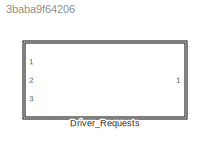
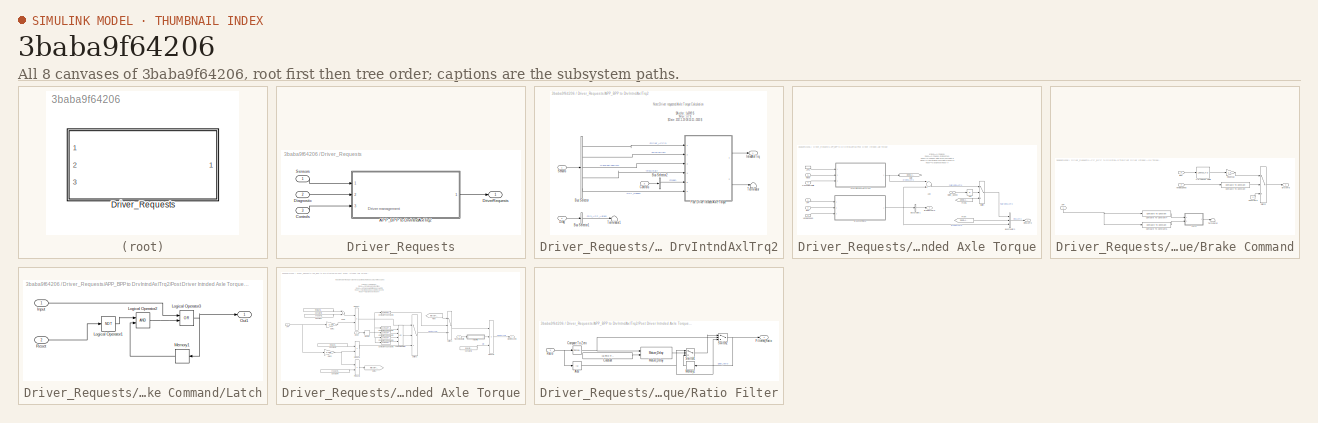
[diagram: thumbnail index - all 8 canvases of the model, root first then tree order]
MODEL slx_3baba9f64206
KIND library
CONFIG AbsTol = auto
CONFIG EnableMultiTasking = off
CONFIG FixedStep = auto
CONFIG MaxStep = auto
CONFIG MinStep = auto
CONFIG RelTol = 1e-3
CONFIG SampleTimeConstraint = Unconstrained
CONFIG Solver = VariableStepAuto
CONFIG SolverName = VariableStepAuto
CONFIG StartTime = 0.0
CONFIG StopTime = 10.0
BLOCK [SubSystem] Driver_Requests
  Ports = [3, 1]
  RequestExecContextInheritance = off
  Variant = off
BLOCK [SubSystem] Driver_Requests/APP_BPP to DrvIntndAxlTrq2
  Ports = [3, 1]
  RequestExecContextInheritance = off
  Variant = off
BLOCK [BusSelector] Driver_Requests/APP_BPP to DrvIntndAxlTrq2/Bus Selector
  OutputAsBus = off
  OutputSignals = from_Analog.Driver_APP1,from_CAN.fromVEH_CAN.from_BCM.BrkPdlPos,from_CAN.fromEBCAN.from_ECM.VehSpdAvgDrvn,from_CAN.fromVEH_CAN.from_TCM.TrnGrRat,from_CAN.fromHV_CAN.from_MCU.INV_VCU_01.INV_Speed
  Ports = [1, 5]
BLOCK [BusSelector] Driver_Requests/APP_BPP to DrvIntndAxlTrq2/Bus Selector1
  OutputAsBus = off
  OutputSignals = CompSig.RawSig.Driver_SigDiag.Drv_APP_Agree
  Ports = [1, 1]
BLOCK [BusSelector] Driver_Requests/APP_BPP to DrvIntndAxlTrq2/Bus Selector2
  OutputAsBus = off
  OutputSignals = mode
  Ports = [1, 1]
BLOCK [Inport] Driver_Requests/APP_BPP to DrvIntndAxlTrq2/Controls
  IconDisplay = Port number
  Port = 3
BLOCK [Inport] Driver_Requests/APP_BPP to DrvIntndAxlTrq2/Diag
  IconDisplay = Port number
  Port = 2
BLOCK [Outport] Driver_Requests/APP_BPP to DrvIntndAxlTrq2/IntndAxlTrq
  IconDisplay = Port number
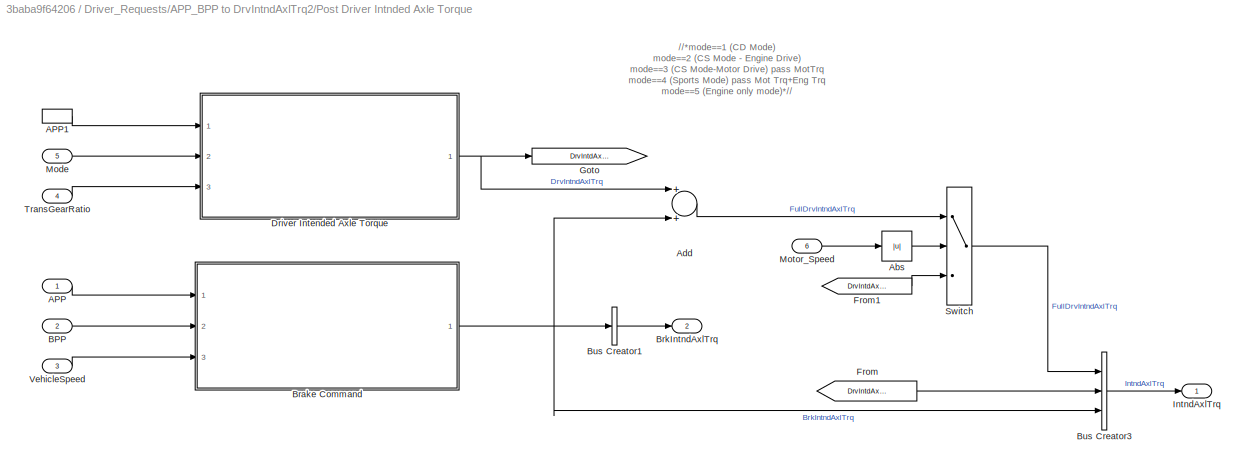
BLOCK [SubSystem] Driver_Requests/APP_BPP to DrvIntndAxlTrq2/Post Driver Intnded Axle Torque
  Ports = [6, 2]
  RequestExecContextInheritance = off
  Variant = off
BLOCK [Inport] Driver_Requests/APP_BPP to DrvIntndAxlTrq2/Post Driver Intnded Axle Torque/APP
  IconDisplay = Port number
BLOCK [InportShadow] Driver_Requests/APP_BPP to DrvIntndAxlTrq2/Post Driver Intnded Axle Torque/APP1
  IconDisplay = Port number
BLOCK [Abs] Driver_Requests/APP_BPP to DrvIntndAxlTrq2/Post Driver Intnded Axle Torque/Abs
  SaturateOnIntegerOverflow = off
BLOCK [Sum] Driver_Requests/APP_BPP to DrvIntndAxlTrq2/Post Driver Intnded Axle Torque/Add
  InputSameDT = off
  OutDataTypeStr = Inherit: Inherit via internal rule
  Ports = [2, 1]
  SaturateOnIntegerOverflow = off
BLOCK [Inport] Driver_Requests/APP_BPP to DrvIntndAxlTrq2/Post Driver Intnded Axle Torque/BPP
  IconDisplay = Port number
  Port = 2
BLOCK [SubSystem] Driver_Requests/APP_BPP to DrvIntndAxlTrq2/Post Driver Intnded Axle Torque/Brake Command
  Ports = [3, 1]
  RequestExecContextInheritance = off
  Variant = off
BLOCK [Lookup_n-D] Driver_Requests/APP_BPP to DrvIntndAxlTrq2/Post Driver Intnded Axle Torque/Brake Command/1-D Lookup Table
  BreakpointsForDimension1 = cal.Regen.BrakeAxleTrq.idx1_BrkPdlPos
  InternalRulePriority = Speed
  NumberOfTableDimensions = 1
  Ports = [1, 1]
  RndMeth = Simplest
  Table = cal.Regen.BrakeAxleTrq.map
BLOCK [Inport] Driver_Requests/APP_BPP to DrvIntndAxlTrq2/Post Driver Intnded Axle Torque/Brake Command/APP
  IconDisplay = Port number
BLOCK [Inport] Driver_Requests/APP_BPP to DrvIntndAxlTrq2/Post Driver Intnded Axle Torque/Brake Command/BPP
  IconDisplay = Port number
  Port = 2
BLOCK [Outport] Driver_Requests/APP_BPP to DrvIntndAxlTrq2/Post Driver Intnded Axle Torque/Brake Command/BrkAxlTrq
  IconDisplay = Port number
BLOCK [Reference] Driver_Requests/APP_BPP to DrvIntndAxlTrq2/Post Driver Intnded Axle Torque/Brake Command/Compare To Constant  REF=simulink/Logic and Bit
Operations/Compare
To Constant
  Ports = [1, 1]
  SourceBlock = simulink/Logic and Bit\nOperations/Compare\nTo Constant
  SourceProductBaseCode = SL
  SourceProductName = Simulink
  SourceType = Compare To Constant
BLOCK [Reference] Driver_Requests/APP_BPP to DrvIntndAxlTrq2/Post Driver Intnded Axle Torque/Brake Command/Compare To Constant4  REF=simulink/Logic and Bit
Operations/Compare
To Constant
  Ports = [1, 1]
  SourceBlock = simulink/Logic and Bit\nOperations/Compare\nTo Constant
  SourceProductBaseCode = SL
  SourceProductName = Simulink
  SourceType = Compare To Constant
BLOCK [Reference] Driver_Requests/APP_BPP to DrvIntndAxlTrq2/Post Driver Intnded Axle Torque/Brake Command/Compare To Constant5  REF=simulink/Logic and Bit
Operations/Compare
To Constant
  Ports = [1, 1]
  SourceBlock = simulink/Logic and Bit\nOperations/Compare\nTo Constant
  SourceProductBaseCode = SL
  SourceProductName = Simulink
  SourceType = Compare To Constant
BLOCK [Constant] Driver_Requests/APP_BPP to DrvIntndAxlTrq2/Post Driver Intnded Axle Torque/Brake Command/Constant5
  Value = 0
BLOCK [SubSystem] Driver_Requests/APP_BPP to DrvIntndAxlTrq2/Post Driver Intnded Axle Torque/Brake Command/Latch
  Ports = [2, 1]
  RequestExecContextInheritance = off
  Variant = off
BLOCK [Inport] Driver_Requests/APP_BPP to DrvIntndAxlTrq2/Post Driver Intnded Axle Torque/Brake Command/Latch/Input
  IconDisplay = Port number
BLOCK [Logic] Driver_Requests/APP_BPP to DrvIntndAxlTrq2/Post Driver Intnded Axle Torque/Brake Command/Latch/Logical Operator1
  AllPortsSameDT = off
  Operator = NOT
  OutDataTypeStr = boolean
  Ports = [1, 1]
BLOCK [Logic] Driver_Requests/APP_BPP to DrvIntndAxlTrq2/Post Driver Intnded Axle Torque/Brake Command/Latch/Logical Operator2
  AllPortsSameDT = off
  OutDataTypeStr = boolean
  Ports = [2, 1]
BLOCK [Logic] Driver_Requests/APP_BPP to DrvIntndAxlTrq2/Post Driver Intnded Axle Torque/Brake Command/Latch/Logical Operator3
  AllPortsSameDT = off
  Operator = OR
  OutDataTypeStr = boolean
  Ports = [2, 1]
BLOCK [Memory] Driver_Requests/APP_BPP to DrvIntndAxlTrq2/Post Driver Intnded Axle Torque/Brake Command/Latch/Memory1
BLOCK [Outport] Driver_Requests/APP_BPP to DrvIntndAxlTrq2/Post Driver Intnded Axle Torque/Brake Command/Latch/Out1
  IconDisplay = Port number
BLOCK [Inport] Driver_Requests/APP_BPP to DrvIntndAxlTrq2/Post Driver Intnded Axle Torque/Brake Command/Latch/Reset
  IconDisplay = Port number
  Port = 2
BLOCK [Gain] Driver_Requests/APP_BPP to DrvIntndAxlTrq2/Post Driver Intnded Axle Torque/Brake Command/RegenCal
  Gain = 1.3
  OutDataTypeStr = Inherit: Inherit via internal rule
  ParamDataTypeStr = Inherit: Inherit via internal rule
  SaturateOnIntegerOverflow = off
BLOCK [Switch] Driver_Requests/APP_BPP to DrvIntndAxlTrq2/Post Driver Intnded Axle Torque/Brake Command/Switch
  Criteria = u2 > Threshold
  InputSameDT = off
  SaturateOnIntegerOverflow = off
  Threshold = 1
BLOCK [Terminator] Driver_Requests/APP_BPP to DrvIntndAxlTrq2/Post Driver Intnded Axle Torque/Brake Command/Terminator
BLOCK [Inport] Driver_Requests/APP_BPP to DrvIntndAxlTrq2/Post Driver Intnded Axle Torque/Brake Command/VehicleSpeed
  IconDisplay = Port number
  Port = 3
BLOCK [Outport] Driver_Requests/APP_BPP to DrvIntndAxlTrq2/Post Driver Intnded Axle Torque/BrkIntndAxlTrq
  IconDisplay = Port number
  Port = 2
BLOCK [BusCreator] Driver_Requests/APP_BPP to DrvIntndAxlTrq2/Post Driver Intnded Axle Torque/Bus Creator1
  DisplayOption = bar
  InheritFromInputs = on
  Inputs = 1
  Ports = [1, 1]
BLOCK [BusCreator] Driver_Requests/APP_BPP to DrvIntndAxlTrq2/Post Driver Intnded Axle Torque/Bus Creator3
  DisplayOption = bar
  InheritFromInputs = on
  Inputs = 3
  Ports = [3, 1]
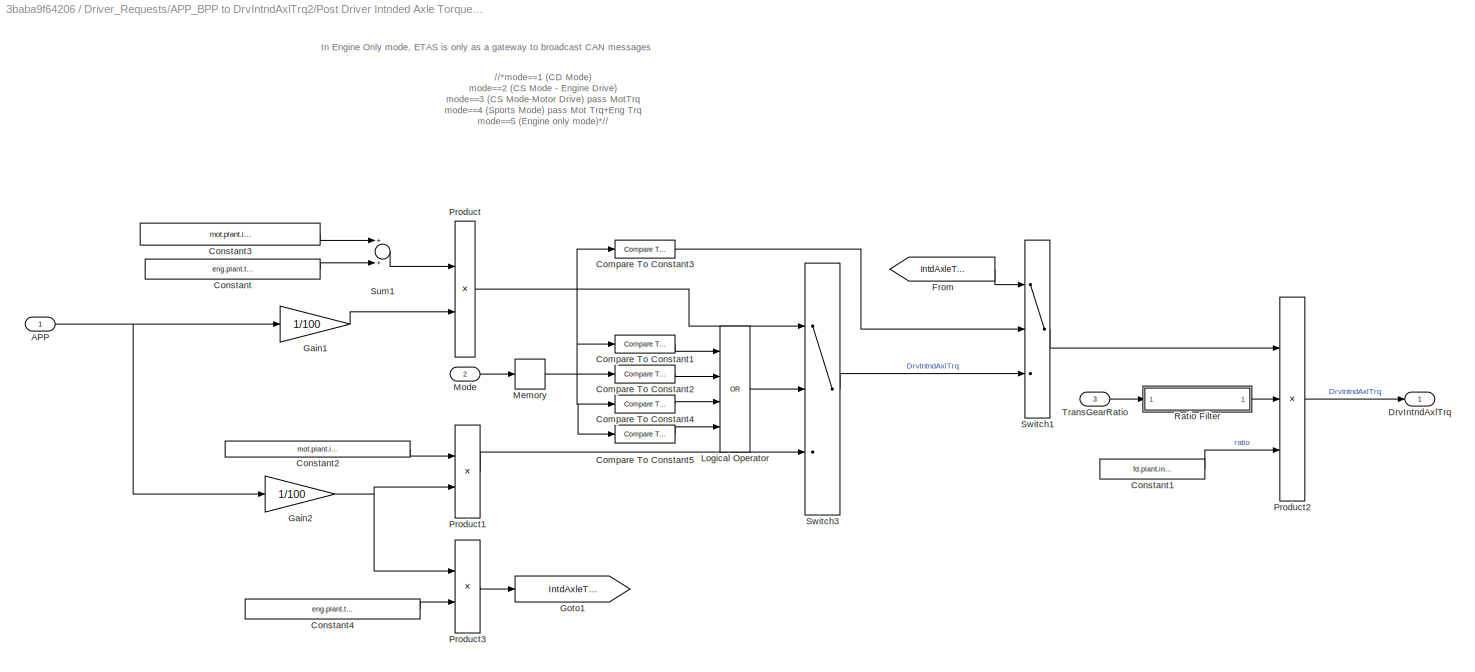
BLOCK [SubSystem] Driver_Requests/APP_BPP to DrvIntndAxlTrq2/Post Driver Intnded Axle Torque/Driver Intended Axle Torque
  Ports = [3, 1]
  RequestExecContextInheritance = off
  Variant = off
BLOCK [Inport] Driver_Requests/APP_BPP to DrvIntndAxlTrq2/Post Driver Intnded Axle Torque/Driver Intended Axle Torque/APP
  IconDisplay = Port number
BLOCK [Reference] Driver_Requests/APP_BPP to DrvIntndAxlTrq2/Post Driver Intnded Axle Torque/Driver Intended Axle Torque/Compare To Constant1  REF=simulink/Logic and Bit
Operations/Compare
To Constant
  Ports = [1, 1]
  SourceBlock = simulink/Logic and Bit\nOperations/Compare\nTo Constant
  SourceProductBaseCode = SL
  SourceProductName = Simulink
  SourceType = Compare To Constant
BLOCK [Reference] Driver_Requests/APP_BPP to DrvIntndAxlTrq2/Post Driver Intnded Axle Torque/Driver Intended Axle Torque/Compare To Constant2  REF=simulink/Logic and Bit
Operations/Compare
To Constant
  Ports = [1, 1]
  SourceBlock = simulink/Logic and Bit\nOperations/Compare\nTo Constant
  SourceProductBaseCode = SL
  SourceProductName = Simulink
  SourceType = Compare To Constant
BLOCK [Reference] Driver_Requests/APP_BPP to DrvIntndAxlTrq2/Post Driver Intnded Axle Torque/Driver Intended Axle Torque/Compare To Constant3  REF=simulink/Logic and Bit
Operations/Compare
To Constant
  Ports = [1, 1]
  SourceBlock = simulink/Logic and Bit\nOperations/Compare\nTo Constant
  SourceProductBaseCode = SL
  SourceProductName = Simulink
  SourceType = Compare To Constant
BLOCK [Reference] Driver_Requests/APP_BPP to DrvIntndAxlTrq2/Post Driver Intnded Axle Torque/Driver Intended Axle Torque/Compare To Constant4  REF=simulink/Logic and Bit
Operations/Compare
To Constant
  Ports = [1, 1]
  SourceBlock = simulink/Logic and Bit\nOperations/Compare\nTo Constant
  SourceProductBaseCode = SL
  SourceProductName = Simulink
  SourceType = Compare To Constant
BLOCK [Reference] Driver_Requests/APP_BPP to DrvIntndAxlTrq2/Post Driver Intnded Axle Torque/Driver Intended Axle Torque/Compare To Constant5  REF=simulink/Logic and Bit
Operations/Compare
To Constant
  Ports = [1, 1]
  SourceBlock = simulink/Logic and Bit\nOperations/Compare\nTo Constant
  SourceProductBaseCode = SL
  SourceProductName = Simulink
  SourceType = Compare To Constant
BLOCK [Constant] Driver_Requests/APP_BPP to DrvIntndAxlTrq2/Post Driver Intnded Axle Torque/Driver Intended Axle Torque/Constant
  Value = eng.plant.trq_max_hot_point
  VectorParams1D = off
BLOCK [Constant] Driver_Requests/APP_BPP to DrvIntndAxlTrq2/Post Driver Intnded Axle Torque/Driver Intended Axle Torque/Constant1
  Value = fd.plant.init.ratio
BLOCK [Constant] Driver_Requests/APP_BPP to DrvIntndAxlTrq2/Post Driver Intnded Axle Torque/Driver Intended Axle Torque/Constant2
  Value = mot.plant.init.motor.trq_max.points.trq
  VectorParams1D = off
BLOCK [Constant] Driver_Requests/APP_BPP to DrvIntndAxlTrq2/Post Driver Intnded Axle Torque/Driver Intended Axle Torque/Constant3
  Value = mot.plant.init.motor.trq_max.points.trq
  VectorParams1D = off
BLOCK [Constant] Driver_Requests/APP_BPP to DrvIntndAxlTrq2/Post Driver Intnded Axle Torque/Driver Intended Axle Torque/Constant4
  Value = eng.plant.trq_max_hot_point
  VectorParams1D = off
BLOCK [Outport] Driver_Requests/APP_BPP to DrvIntndAxlTrq2/Post Driver Intnded Axle Torque/Driver Intended Axle Torque/DrvIntndAxlTrq
  IconDisplay = Port number
BLOCK [From] Driver_Requests/APP_BPP to DrvIntndAxlTrq2/Post Driver Intnded Axle Torque/Driver Intended Axle Torque/From
  GotoTag = IntdAxleTrq_eng
BLOCK [Gain] Driver_Requests/APP_BPP to DrvIntndAxlTrq2/Post Driver Intnded Axle Torque/Driver Intended Axle Torque/Gain1
  Gain = 1/100
  OutDataTypeStr = Inherit: Inherit via internal rule
  ParamDataTypeStr = Inherit: Inherit via internal rule
  SaturateOnIntegerOverflow = off
BLOCK [Gain] Driver_Requests/APP_BPP to DrvIntndAxlTrq2/Post Driver Intnded Axle Torque/Driver Intended Axle Torque/Gain2
  Gain = 1/100
  OutDataTypeStr = Inherit: Inherit via internal rule
  ParamDataTypeStr = Inherit: Inherit via internal rule
  SaturateOnIntegerOverflow = off
BLOCK [Goto] Driver_Requests/APP_BPP to DrvIntndAxlTrq2/Post Driver Intnded Axle Torque/Driver Intended Axle Torque/Goto1
  GotoTag = IntdAxleTrq_eng
BLOCK [Logic] Driver_Requests/APP_BPP to DrvIntndAxlTrq2/Post Driver Intnded Axle Torque/Driver Intended Axle Torque/Logical Operator
  AllPortsSameDT = off
  Inputs = 4
  Operator = OR
  OutDataTypeStr = boolean
  Ports = [4, 1]
BLOCK [Memory] Driver_Requests/APP_BPP to DrvIntndAxlTrq2/Post Driver Intnded Axle Torque/Driver Intended Axle Torque/Memory
BLOCK [Inport] Driver_Requests/APP_BPP to DrvIntndAxlTrq2/Post Driver Intnded Axle Torque/Driver Intended Axle Torque/Mode
  IconDisplay = Port number
  Port = 2
BLOCK [Product] Driver_Requests/APP_BPP to DrvIntndAxlTrq2/Post Driver Intnded Axle Torque/Driver Intended Axle Torque/Product
  InputSameDT = off
  OutDataTypeStr = Inherit: Inherit via internal rule
  Ports = [2, 1]
  SaturateOnIntegerOverflow = off
BLOCK [Product] Driver_Requests/APP_BPP to DrvIntndAxlTrq2/Post Driver Intnded Axle Torque/Driver Intended Axle Torque/Product1
  InputSameDT = off
  OutDataTypeStr = Inherit: Inherit via internal rule
  Ports = [2, 1]
  SaturateOnIntegerOverflow = off
BLOCK [Product] Driver_Requests/APP_BPP to DrvIntndAxlTrq2/Post Driver Intnded Axle Torque/Driver Intended Axle Torque/Product2
  InputSameDT = off
  Inputs = 3
  OutDataTypeStr = Inherit: Inherit via internal rule
  Ports = [3, 1]
  SaturateOnIntegerOverflow = off
BLOCK [Product] Driver_Requests/APP_BPP to DrvIntndAxlTrq2/Post Driver Intnded Axle Torque/Driver Intended Axle Torque/Product3
  InputSameDT = off
  OutDataTypeStr = Inherit: Inherit via internal rule
  Ports = [2, 1]
  SaturateOnIntegerOverflow = off
BLOCK [SubSystem] Driver_Requests/APP_BPP to DrvIntndAxlTrq2/Post Driver Intnded Axle Torque/Driver Intended Axle Torque/Ratio Filter
  Ports = [1, 1]
  RequestExecContextInheritance = off
  Variant = off
BLOCK [Abs] Driver_Requests/APP_BPP to DrvIntndAxlTrq2/Post Driver Intnded Axle Torque/Driver Intended Axle Torque/Ratio Filter/Abs
  SaturateOnIntegerOverflow = off
BLOCK [Reference] Driver_Requests/APP_BPP to DrvIntndAxlTrq2/Post Driver Intnded Axle Torque/Driver Intended Axle Torque/Ratio Filter/Compare To Zero  REF=simulink/Logic and Bit
Operations/Compare
To Zero
  Ports = [1, 1]
  SourceBlock = simulink/Logic and Bit\nOperations/Compare\nTo Zero
  SourceProductBaseCode = SL
  SourceProductName = Simulink
  SourceType = Compare To Zero
BLOCK [Constant] Driver_Requests/APP_BPP to DrvIntndAxlTrq2/Post Driver Intnded Axle Torque/Driver Intended Axle Torque/Ratio Filter/Constant
  Value = cal.Time.TrnsOvrllEstTrqRatioSwitch
BLOCK [Outport] Driver_Requests/APP_BPP to DrvIntndAxlTrq2/Post Driver Intnded Axle Torque/Driver Intended Axle Torque/Ratio Filter/Filtered_Ratio
  IconDisplay = Port number
BLOCK [Reference] Driver_Requests/APP_BPP to DrvIntndAxlTrq2/Post Driver Intnded Axle Torque/Driver Intended Axle Torque/Ratio Filter/Mature_Delay  REF=EC2_libraries/Mature_Delay
  Ports = [2, 1]
  SourceBlock = EC2_libraries/Mature_Delay
  SourceType = SubSystem
BLOCK [Memory] Driver_Requests/APP_BPP to DrvIntndAxlTrq2/Post Driver Intnded Axle Torque/Driver Intended Axle Torque/Ratio Filter/Memory1
  X0 = 1
BLOCK [Inport] Driver_Requests/APP_BPP to DrvIntndAxlTrq2/Post Driver Intnded Axle Torque/Driver Intended Axle Torque/Ratio Filter/Ratio
  IconDisplay = Port number
BLOCK [Switch] Driver_Requests/APP_BPP to DrvIntndAxlTrq2/Post Driver Intnded Axle Torque/Driver Intended Axle Torque/Ratio Filter/Switch1
  InputSameDT = off
  SaturateOnIntegerOverflow = off
  Threshold = 1
BLOCK [Switch] Driver_Requests/APP_BPP to DrvIntndAxlTrq2/Post Driver Intnded Axle Torque/Driver Intended Axle Torque/Ratio Filter/Switch2
  InputSameDT = off
  SaturateOnIntegerOverflow = off
  Threshold = 1
BLOCK [Sum] Driver_Requests/APP_BPP to DrvIntndAxlTrq2/Post Driver Intnded Axle Torque/Driver Intended Axle Torque/Sum1
  InputSameDT = off
  OutDataTypeStr = Inherit: Inherit via internal rule
  Ports = [2, 1]
  SaturateOnIntegerOverflow = off
BLOCK [Switch] Driver_Requests/APP_BPP to DrvIntndAxlTrq2/Post Driver Intnded Axle Torque/Driver Intended Axle Torque/Switch1
  InputSameDT = off
  SaturateOnIntegerOverflow = off
  Threshold = 1
BLOCK [Switch] Driver_Requests/APP_BPP to DrvIntndAxlTrq2/Post Driver Intnded Axle Torque/Driver Intended Axle Torque/Switch3
  InputSameDT = off
  SaturateOnIntegerOverflow = off
  Threshold = 1
BLOCK [Inport] Driver_Requests/APP_BPP to DrvIntndAxlTrq2/Post Driver Intnded Axle Torque/Driver Intended Axle Torque/TransGearRatio
  IconDisplay = Port number
  Port = 3
BLOCK [From] Driver_Requests/APP_BPP to DrvIntndAxlTrq2/Post Driver Intnded Axle Torque/From
  GotoTag = DrvIntdAxleTrq
  TagVisibility = global
BLOCK [From] Driver_Requests/APP_BPP to DrvIntndAxlTrq2/Post Driver Intnded Axle Torque/From1
  GotoTag = DrvIntdAxleTrq
BLOCK [Goto] Driver_Requests/APP_BPP to DrvIntndAxlTrq2/Post Driver Intnded Axle Torque/Goto
  GotoTag = DrvIntdAxleTrq
  TagVisibility = global
BLOCK [Outport] Driver_Requests/APP_BPP to DrvIntndAxlTrq2/Post Driver Intnded Axle Torque/IntndAxlTrq
  IconDisplay = Port number
BLOCK [Inport] Driver_Requests/APP_BPP to DrvIntndAxlTrq2/Post Driver Intnded Axle Torque/Mode
  IconDisplay = Port number
  Port = 5
BLOCK [Inport] Driver_Requests/APP_BPP to DrvIntndAxlTrq2/Post Driver Intnded Axle Torque/Motor_Speed
  IconDisplay = Port number
  Port = 6
BLOCK [Switch] Driver_Requests/APP_BPP to DrvIntndAxlTrq2/Post Driver Intnded Axle Torque/Switch
  InputSameDT = off
  SaturateOnIntegerOverflow = off
  Threshold = cal.Regen.MinMotSpd
BLOCK [Inport] Driver_Requests/APP_BPP to DrvIntndAxlTrq2/Post Driver Intnded Axle Torque/TransGearRatio
  IconDisplay = Port number
  Port = 4
BLOCK [Inport] Driver_Requests/APP_BPP to DrvIntndAxlTrq2/Post Driver Intnded Axle Torque/VehicleSpeed
  IconDisplay = Port number
  Port = 3
BLOCK [Inport] Driver_Requests/APP_BPP to DrvIntndAxlTrq2/Sensors
  IconDisplay = Port number
BLOCK [Terminator] Driver_Requests/APP_BPP to DrvIntndAxlTrq2/Terminator
BLOCK [Terminator] Driver_Requests/APP_BPP to DrvIntndAxlTrq2/Terminator1
BLOCK [Inport] Driver_Requests/Controls 
  IconDisplay = Port number
  Port = 3
BLOCK [Inport] Driver_Requests/Diagnostic 
  IconDisplay = Port number
  Port = 2
BLOCK [Outport] Driver_Requests/DriverRequests
  IconDisplay = Port number
BLOCK [Inport] Driver_Requests/Sensors
  IconDisplay = Port number
ANNOTATION Driver_Requests: Driver management
ANNOTATION Driver_Requests/APP_BPP to DrvIntndAxlTrq2: $Author: fy6949 $ $Rev: 577 $ $Date: 2017-1-19 08:53:15 -0500 $
ANNOTATION Driver_Requests/APP_BPP to DrvIntndAxlTrq2: Note:Driver requested Axle Torque Calculation
ANNOTATION Driver_Requests/APP_BPP to DrvIntndAxlTrq2/Post Driver Intnded Axle Torque: //*mode==1 (CD Mode) mode==2 (CS Mode - Engine Drive) mode==3 (CS Mode-Motor Drive) pass MotTrq mode==4 (Sports Mode) pass Mot Trq+Eng Trq mode==5 (Engine only mode)*//
ANNOTATION Driver_Requests/APP_BPP to DrvIntndAxlTrq2/Post Driver Intnded Axle Torque/Driver Intended Axle Torque: //*mode==1 (CD Mode) mode==2 (CS Mode - Engine Drive) mode==3 (CS Mode-Motor Drive) pass MotTrq mode==4 (Sports Mode) pass Mot Trq+Eng Trq mode==5 (Engine only mode)*//
ANNOTATION Driver_Requests/APP_BPP to DrvIntndAxlTrq2/Post Driver Intnded Axle Torque/Driver Intended Axle Torque: In Engine Only mode, ETAS is only as a gateway to broadcast CAN messages
LINE Driver_Requests/APP_BPP to DrvIntndAxlTrq2/Bus Selector1:1 -> Driver_Requests/APP_BPP to DrvIntndAxlTrq2/Terminator1:1
LINE Driver_Requests/APP_BPP to DrvIntndAxlTrq2/Bus Selector2:1 -> Driver_Requests/APP_BPP to DrvIntndAxlTrq2/Post Driver Intnded Axle Torque:5
LINE Driver_Requests/APP_BPP to DrvIntndAxlTrq2/Bus Selector:1 -> Driver_Requests/APP_BPP to DrvIntndAxlTrq2/Post Driver Intnded Axle Torque:1
LINE Driver_Requests/APP_BPP to DrvIntndAxlTrq2/Bus Selector:2 -> Driver_Requests/APP_BPP to DrvIntndAxlTrq2/Post Driver Intnded Axle Torque:2
LINE Driver_Requests/APP_BPP to DrvIntndAxlTrq2/Bus Selector:3 -> Driver_Requests/APP_BPP to DrvIntndAxlTrq2/Post Driver Intnded Axle Torque:3
LINE Driver_Requests/APP_BPP to DrvIntndAxlTrq2/Bus Selector:4 -> Driver_Requests/APP_BPP to DrvIntndAxlTrq2/Post Driver Intnded Axle Torque:4
LINE Driver_Requests/APP_BPP to DrvIntndAxlTrq2/Bus Selector:5 -> Driver_Requests/APP_BPP to DrvIntndAxlTrq2/Post Driver Intnded Axle Torque:6
LINE Driver_Requests/APP_BPP to DrvIntndAxlTrq2/Controls:1 -> Driver_Requests/APP_BPP to DrvIntndAxlTrq2/Bus Selector2:1
LINE Driver_Requests/APP_BPP to DrvIntndAxlTrq2/Diag:1 -> Driver_Requests/APP_BPP to DrvIntndAxlTrq2/Bus Selector1:1
LINE Driver_Requests/APP_BPP to DrvIntndAxlTrq2/Post Driver Intnded Axle Torque/APP1:1 -> Driver_Requests/APP_BPP to DrvIntndAxlTrq2/Post Driver Intnded Axle Torque/Driver Intended Axle Torque:1
LINE Driver_Requests/APP_BPP to DrvIntndAxlTrq2/Post Driver Intnded Axle Torque/APP:1 -> Driver_Requests/APP_BPP to DrvIntndAxlTrq2/Post Driver Intnded Axle Torque/Brake Command:1
LINE Driver_Requests/APP_BPP to DrvIntndAxlTrq2/Post Driver Intnded Axle Torque/Abs:1 -> Driver_Requests/APP_BPP to DrvIntndAxlTrq2/Post Driver Intnded Axle Torque/Switch:2
LINE Driver_Requests/APP_BPP to DrvIntndAxlTrq2/Post Driver Intnded Axle Torque/Add:1 -> Driver_Requests/APP_BPP to DrvIntndAxlTrq2/Post Driver Intnded Axle Torque/Switch:1
LINE Driver_Requests/APP_BPP to DrvIntndAxlTrq2/Post Driver Intnded Axle Torque/BPP:1 -> Driver_Requests/APP_BPP to DrvIntndAxlTrq2/Post Driver Intnded Axle Torque/Brake Command:2
LINE Driver_Requests/APP_BPP to DrvIntndAxlTrq2/Post Driver Intnded Axle Torque/Brake Command/1-D Lookup Table:1 -> Driver_Requests/APP_BPP to DrvIntndAxlTrq2/Post Driver Intnded Axle Torque/Brake Command/RegenCal:1
NET Driver_Requests/APP_BPP to DrvIntndAxlTrq2/Post Driver Intnded Axle Torque/Brake Command/APP:1 -> Driver_Requests/APP_BPP to DrvIntndAxlTrq2/Post Driver Intnded Axle Torque/Brake Command/Compare To Constant4:1, Driver_Requests/APP_BPP to DrvIntndAxlTrq2/Post Driver Intnded Axle Torque/Brake Command/Compare To Constant5:1
LINE Driver_Requests/APP_BPP to DrvIntndAxlTrq2/Post Driver Intnded Axle Torque/Brake Command/BPP:1 -> Driver_Requests/APP_BPP to DrvIntndAxlTrq2/Post Driver Intnded Axle Torque/Brake Command/1-D Lookup Table:1
LINE Driver_Requests/APP_BPP to DrvIntndAxlTrq2/Post Driver Intnded Axle Torque/Brake Command/Compare To Constant4:1 -> Driver_Requests/APP_BPP to DrvIntndAxlTrq2/Post Driver Intnded Axle Torque/Brake Command/Latch:1
LINE Driver_Requests/APP_BPP to DrvIntndAxlTrq2/Post Driver Intnded Axle Torque/Brake Command/Compare To Constant5:1 -> Driver_Requests/APP_BPP to DrvIntndAxlTrq2/Post Driver Intnded Axle Torque/Brake Command/Latch:2
LINE Driver_Requests/APP_BPP to DrvIntndAxlTrq2/Post Driver Intnded Axle Torque/Brake Command/Compare To Constant:1 -> Driver_Requests/APP_BPP to DrvIntndAxlTrq2/Post Driver Intnded Axle Torque/Brake Command/Switch:2
LINE Driver_Requests/APP_BPP to DrvIntndAxlTrq2/Post Driver Intnded Axle Torque/Brake Command/Constant5:1 -> Driver_Requests/APP_BPP to DrvIntndAxlTrq2/Post Driver Intnded Axle Torque/Brake Command/Switch:3
LINE Driver_Requests/APP_BPP to DrvIntndAxlTrq2/Post Driver Intnded Axle Torque/Brake Command/Latch/Input:1 -> Driver_Requests/APP_BPP to DrvIntndAxlTrq2/Post Driver Intnded Axle Torque/Brake Command/Latch/Logical Operator3:1
LINE Driver_Requests/APP_BPP to DrvIntndAxlTrq2/Post Driver Intnded Axle Torque/Brake Command/Latch/Logical Operator1:1 -> Driver_Requests/APP_BPP to DrvIntndAxlTrq2/Post Driver Intnded Axle Torque/Brake Command/Latch/Logical Operator2:1
LINE Driver_Requests/APP_BPP to DrvIntndAxlTrq2/Post Driver Intnded Axle Torque/Brake Command/Latch/Logical Operator2:1 -> Driver_Requests/APP_BPP to DrvIntndAxlTrq2/Post Driver Intnded Axle Torque/Brake Command/Latch/Logical Operator3:2
NET Driver_Requests/APP_BPP to DrvIntndAxlTrq2/Post Driver Intnded Axle Torque/Brake Command/Latch/Logical Operator3:1 -> Driver_Requests/APP_BPP to DrvIntndAxlTrq2/Post Driver Intnded Axle Torque/Brake Command/Latch/Memory1:1, Driver_Requests/APP_BPP to DrvIntndAxlTrq2/Post Driver Intnded Axle Torque/Brake Command/Latch/Out1:1
LINE Driver_Requests/APP_BPP to DrvIntndAxlTrq2/Post Driver Intnded Axle Torque/Brake Command/Latch/Memory1:1 -> Driver_Requests/APP_BPP to DrvIntndAxlTrq2/Post Driver Intnded Axle Torque/Brake Command/Latch/Logical Operator2:2
LINE Driver_Requests/APP_BPP to DrvIntndAxlTrq2/Post Driver Intnded Axle Torque/Brake Command/Latch/Reset:1 -> Driver_Requests/APP_BPP to DrvIntndAxlTrq2/Post Driver Intnded Axle Torque/Brake Command/Latch/Logical Operator1:1
LINE Driver_Requests/APP_BPP to DrvIntndAxlTrq2/Post Driver Intnded Axle Torque/Brake Command/Latch:1 -> Driver_Requests/APP_BPP to DrvIntndAxlTrq2/Post Driver Intnded Axle Torque/Brake Command/Terminator:1
LINE Driver_Requests/APP_BPP to DrvIntndAxlTrq2/Post Driver Intnded Axle Torque/Brake Command/RegenCal:1 -> Driver_Requests/APP_BPP to DrvIntndAxlTrq2/Post Driver Intnded Axle Torque/Brake Command/Switch:1
LINE Driver_Requests/APP_BPP to DrvIntndAxlTrq2/Post Driver Intnded Axle Torque/Brake Command/Switch:1 -> Driver_Requests/APP_BPP to DrvIntndAxlTrq2/Post Driver Intnded Axle Torque/Brake Command/BrkAxlTrq:1
LINE Driver_Requests/APP_BPP to DrvIntndAxlTrq2/Post Driver Intnded Axle Torque/Brake Command/VehicleSpeed:1 -> Driver_Requests/APP_BPP to DrvIntndAxlTrq2/Post Driver Intnded Axle Torque/Brake Command/Compare To Constant:1
NET Driver_Requests/APP_BPP to DrvIntndAxlTrq2/Post Driver Intnded Axle Torque/Brake Command:1 -> Driver_Requests/APP_BPP to DrvIntndAxlTrq2/Post Driver Intnded Axle Torque/Add:2, Driver_Requests/APP_BPP to DrvIntndAxlTrq2/Post Driver Intnded Axle Torque/Bus Creator1:1, Driver_Requests/APP_BPP to DrvIntndAxlTrq2/Post Driver Intnded Axle Torque/Bus Creator3:3
LINE Driver_Requests/APP_BPP to DrvIntndAxlTrq2/Post Driver Intnded Axle Torque/Bus Creator1:1 -> Driver_Requests/APP_BPP to DrvIntndAxlTrq2/Post Driver Intnded Axle Torque/BrkIntndAxlTrq:1
LINE Driver_Requests/APP_BPP to DrvIntndAxlTrq2/Post Driver Intnded Axle Torque/Bus Creator3:1 -> Driver_Requests/APP_BPP to DrvIntndAxlTrq2/Post Driver Intnded Axle Torque/IntndAxlTrq:1
NET Driver_Requests/APP_BPP to DrvIntndAxlTrq2/Post Driver Intnded Axle Torque/Driver Intended Axle Torque/APP:1 -> Driver_Requests/APP_BPP to DrvIntndAxlTrq2/Post Driver Intnded Axle Torque/Driver Intended Axle Torque/Gain1:1, Driver_Requests/APP_BPP to DrvIntndAxlTrq2/Post Driver Intnded Axle Torque/Driver Intended Axle Torque/Gain2:1
LINE Driver_Requests/APP_BPP to DrvIntndAxlTrq2/Post Driver Intnded Axle Torque/Driver Intended Axle Torque/Compare To Constant1:1 -> Driver_Requests/APP_BPP to DrvIntndAxlTrq2/Post Driver Intnded Axle Torque/Driver Intended Axle Torque/Logical Operator:1
LINE Driver_Requests/APP_BPP to DrvIntndAxlTrq2/Post Driver Intnded Axle Torque/Driver Intended Axle Torque/Compare To Constant2:1 -> Driver_Requests/APP_BPP to DrvIntndAxlTrq2/Post Driver Intnded Axle Torque/Driver Intended Axle Torque/Logical Operator:2
LINE Driver_Requests/APP_BPP to DrvIntndAxlTrq2/Post Driver Intnded Axle Torque/Driver Intended Axle Torque/Compare To Constant3:1 -> Driver_Requests/APP_BPP to DrvIntndAxlTrq2/Post Driver Intnded Axle Torque/Driver Intended Axle Torque/Switch1:2
LINE Driver_Requests/APP_BPP to DrvIntndAxlTrq2/Post Driver Intnded Axle Torque/Driver Intended Axle Torque/Compare To Constant4:1 -> Driver_Requests/APP_BPP to DrvIntndAxlTrq2/Post Driver Intnded Axle Torque/Driver Intended Axle Torque/Logical Operator:3
LINE Driver_Requests/APP_BPP to DrvIntndAxlTrq2/Post Driver Intnded Axle Torque/Driver Intended Axle Torque/Compare To Constant5:1 -> Driver_Requests/APP_BPP to DrvIntndAxlTrq2/Post Driver Intnded Axle Torque/Driver Intended Axle Torque/Logical Operator:4
LINE Driver_Requests/APP_BPP to DrvIntndAxlTrq2/Post Driver Intnded Axle Torque/Driver Intended Axle Torque/Constant1:1 -> Driver_Requests/APP_BPP to DrvIntndAxlTrq2/Post Driver Intnded Axle Torque/Driver Intended Axle Torque/Product2:3
LINE Driver_Requests/APP_BPP to DrvIntndAxlTrq2/Post Driver Intnded Axle Torque/Driver Intended Axle Torque/Constant2:1 -> Driver_Requests/APP_BPP to DrvIntndAxlTrq2/Post Driver Intnded Axle Torque/Driver Intended Axle Torque/Product1:1
LINE Driver_Requests/APP_BPP to DrvIntndAxlTrq2/Post Driver Intnded Axle Torque/Driver Intended Axle Torque/Constant3:1 -> Driver_Requests/APP_BPP to DrvIntndAxlTrq2/Post Driver Intnded Axle Torque/Driver Intended Axle Torque/Sum1:1
LINE Driver_Requests/APP_BPP to DrvIntndAxlTrq2/Post Driver Intnded Axle Torque/Driver Intended Axle Torque/Constant4:1 -> Driver_Requests/APP_BPP to DrvIntndAxlTrq2/Post Driver Intnded Axle Torque/Driver Intended Axle Torque/Product3:2
LINE Driver_Requests/APP_BPP to DrvIntndAxlTrq2/Post Driver Intnded Axle Torque/Driver Intended Axle Torque/Constant:1 -> Driver_Requests/APP_BPP to DrvIntndAxlTrq2/Post Driver Intnded Axle Torque/Driver Intended Axle Torque/Sum1:2
LINE Driver_Requests/APP_BPP to DrvIntndAxlTrq2/Post Driver Intnded Axle Torque/Driver Intended Axle Torque/From:1 -> Driver_Requests/APP_BPP to DrvIntndAxlTrq2/Post Driver Intnded Axle Torque/Driver Intended Axle Torque/Switch1:1
LINE Driver_Requests/APP_BPP to DrvIntndAxlTrq2/Post Driver Intnded Axle Torque/Driver Intended Axle Torque/Gain1:1 -> Driver_Requests/APP_BPP to DrvIntndAxlTrq2/Post Driver Intnded Axle Torque/Driver Intended Axle Torque/Product:2
NET Driver_Requests/APP_BPP to DrvIntndAxlTrq2/Post Driver Intnded Axle Torque/Driver Intended Axle Torque/Gain2:1 -> Driver_Requests/APP_BPP to DrvIntndAxlTrq2/Post Driver Intnded Axle Torque/Driver Intended Axle Torque/Product1:2, Driver_Requests/APP_BPP to DrvIntndAxlTrq2/Post Driver Intnded Axle Torque/Driver Intended Axle Torque/Product3:1
LINE Driver_Requests/APP_BPP to DrvIntndAxlTrq2/Post Driver Intnded Axle Torque/Driver Intended Axle Torque/Logical Operator:1 -> Driver_Requests/APP_BPP to DrvIntndAxlTrq2/Post Driver Intnded Axle Torque/Driver Intended Axle Torque/Switch3:2
NET Driver_Requests/APP_BPP to DrvIntndAxlTrq2/Post Driver Intnded Axle Torque/Driver Intended Axle Torque/Memory:1 -> Driver_Requests/APP_BPP to DrvIntndAxlTrq2/Post Driver Intnded Axle Torque/Driver Intended Axle Torque/Compare To Constant1:1, Driver_Requests/APP_BPP to DrvIntndAxlTrq2/Post Driver Intnded Axle Torque/Driver Intended Axle Torque/Compare To Constant2:1, Driver_Requests/APP_BPP to DrvIntndAxlTrq2/Post Driver Intnded Axle Torque/Driver Intended Axle Torque/Compare To Constant3:1, Driver_Requests/APP_BPP to DrvIntndAxlTrq2/Post Driver Intnded Axle Torque/Driver Intended Axle Torque/Compare To Constant4:1, Driver_Requests/APP_BPP to DrvIntndAxlTrq2/Post Driver Intnded Axle Torque/Driver Intended Axle Torque/Compare To Constant5:1
LINE Driver_Requests/APP_BPP to DrvIntndAxlTrq2/Post Driver Intnded Axle Torque/Driver Intended Axle Torque/Mode:1 -> Driver_Requests/APP_BPP to DrvIntndAxlTrq2/Post Driver Intnded Axle Torque/Driver Intended Axle Torque/Memory:1
LINE Driver_Requests/APP_BPP to DrvIntndAxlTrq2/Post Driver Intnded Axle Torque/Driver Intended Axle Torque/Product1:1 -> Driver_Requests/APP_BPP to DrvIntndAxlTrq2/Post Driver Intnded Axle Torque/Driver Intended Axle Torque/Switch3:3
LINE Driver_Requests/APP_BPP to DrvIntndAxlTrq2/Post Driver Intnded Axle Torque/Driver Intended Axle Torque/Product2:1 -> Driver_Requests/APP_BPP to DrvIntndAxlTrq2/Post Driver Intnded Axle Torque/Driver Intended Axle Torque/DrvIntndAxlTrq:1
LINE Driver_Requests/APP_BPP to DrvIntndAxlTrq2/Post Driver Intnded Axle Torque/Driver Intended Axle Torque/Product3:1 -> Driver_Requests/APP_BPP to DrvIntndAxlTrq2/Post Driver Intnded Axle Torque/Driver Intended Axle Torque/Goto1:1
LINE Driver_Requests/APP_BPP to DrvIntndAxlTrq2/Post Driver Intnded Axle Torque/Driver Intended Axle Torque/Product:1 -> Driver_Requests/APP_BPP to DrvIntndAxlTrq2/Post Driver Intnded Axle Torque/Driver Intended Axle Torque/Switch3:1
NET Driver_Requests/APP_BPP to DrvIntndAxlTrq2/Post Driver Intnded Axle Torque/Driver Intended Axle Torque/Ratio Filter/Abs:1 -> Driver_Requests/APP_BPP to DrvIntndAxlTrq2/Post Driver Intnded Axle Torque/Driver Intended Axle Torque/Ratio Filter/Switch1:1, Driver_Requests/APP_BPP to DrvIntndAxlTrq2/Post Driver Intnded Axle Torque/Driver Intended Axle Torque/Ratio Filter/Switch2:3
NET Driver_Requests/APP_BPP to DrvIntndAxlTrq2/Post Driver Intnded Axle Torque/Driver Intended Axle Torque/Ratio Filter/Compare To Zero:1 -> Driver_Requests/APP_BPP to DrvIntndAxlTrq2/Post Driver Intnded Axle Torque/Driver Intended Axle Torque/Ratio Filter/Mature_Delay:1, Driver_Requests/APP_BPP to DrvIntndAxlTrq2/Post Driver Intnded Axle Torque/Driver Intended Axle Torque/Ratio Filter/Switch2:2
LINE Driver_Requests/APP_BPP to DrvIntndAxlTrq2/Post Driver Intnded Axle Torque/Driver Intended Axle Torque/Ratio Filter/Constant:1 -> Driver_Requests/APP_BPP to DrvIntndAxlTrq2/Post Driver Intnded Axle Torque/Driver Intended Axle Torque/Ratio Filter/Mature_Delay:2
LINE Driver_Requests/APP_BPP to DrvIntndAxlTrq2/Post Driver Intnded Axle Torque/Driver Intended Axle Torque/Ratio Filter/Mature_Delay:1 -> Driver_Requests/APP_BPP to DrvIntndAxlTrq2/Post Driver Intnded Axle Torque/Driver Intended Axle Torque/Ratio Filter/Switch1:2
LINE Driver_Requests/APP_BPP to DrvIntndAxlTrq2/Post Driver Intnded Axle Torque/Driver Intended Axle Torque/Ratio Filter/Memory1:1 -> Driver_Requests/APP_BPP to DrvIntndAxlTrq2/Post Driver Intnded Axle Torque/Driver Intended Axle Torque/Ratio Filter/Switch1:3
NET Driver_Requests/APP_BPP to DrvIntndAxlTrq2/Post Driver Intnded Axle Torque/Driver Intended Axle Torque/Ratio Filter/Ratio:1 -> Driver_Requests/APP_BPP to DrvIntndAxlTrq2/Post Driver Intnded Axle Torque/Driver Intended Axle Torque/Ratio Filter/Abs:1, Driver_Requests/APP_BPP to DrvIntndAxlTrq2/Post Driver Intnded Axle Torque/Driver Intended Axle Torque/Ratio Filter/Compare To Zero:1
LINE Driver_Requests/APP_BPP to DrvIntndAxlTrq2/Post Driver Intnded Axle Torque/Driver Intended Axle Torque/Ratio Filter/Switch1:1 -> Driver_Requests/APP_BPP to DrvIntndAxlTrq2/Post Driver Intnded Axle Torque/Driver Intended Axle Torque/Ratio Filter/Switch2:1
NET Driver_Requests/APP_BPP to DrvIntndAxlTrq2/Post Driver Intnded Axle Torque/Driver Intended Axle Torque/Ratio Filter/Switch2:1 -> Driver_Requests/APP_BPP to DrvIntndAxlTrq2/Post Driver Intnded Axle Torque/Driver Intended Axle Torque/Ratio Filter/Filtered_Ratio:1, Driver_Requests/APP_BPP to DrvIntndAxlTrq2/Post Driver Intnded Axle Torque/Driver Intended Axle Torque/Ratio Filter/Memory1:1
LINE Driver_Requests/APP_BPP to DrvIntndAxlTrq2/Post Driver Intnded Axle Torque/Driver Intended Axle Torque/Ratio Filter:1 -> Driver_Requests/APP_BPP to DrvIntndAxlTrq2/Post Driver Intnded Axle Torque/Driver Intended Axle Torque/Product2:2
LINE Driver_Requests/APP_BPP to DrvIntndAxlTrq2/Post Driver Intnded Axle Torque/Driver Intended Axle Torque/Sum1:1 -> Driver_Requests/APP_BPP to DrvIntndAxlTrq2/Post Driver Intnded Axle Torque/Driver Intended Axle Torque/Product:1
LINE Driver_Requests/APP_BPP to DrvIntndAxlTrq2/Post Driver Intnded Axle Torque/Driver Intended Axle Torque/Switch1:1 -> Driver_Requests/APP_BPP to DrvIntndAxlTrq2/Post Driver Intnded Axle Torque/Driver Intended Axle Torque/Product2:1
LINE Driver_Requests/APP_BPP to DrvIntndAxlTrq2/Post Driver Intnded Axle Torque/Driver Intended Axle Torque/Switch3:1 -> Driver_Requests/APP_BPP to DrvIntndAxlTrq2/Post Driver Intnded Axle Torque/Driver Intended Axle Torque/Switch1:3
LINE Driver_Requests/APP_BPP to DrvIntndAxlTrq2/Post Driver Intnded Axle Torque/Driver Intended Axle Torque/TransGearRatio:1 -> Driver_Requests/APP_BPP to DrvIntndAxlTrq2/Post Driver Intnded Axle Torque/Driver Intended Axle Torque/Ratio Filter:1
NET Driver_Requests/APP_BPP to DrvIntndAxlTrq2/Post Driver Intnded Axle Torque/Driver Intended Axle Torque:1 -> Driver_Requests/APP_BPP to DrvIntndAxlTrq2/Post Driver Intnded Axle Torque/Add:1, Driver_Requests/APP_BPP to DrvIntndAxlTrq2/Post Driver Intnded Axle Torque/Goto:1
LINE Driver_Requests/APP_BPP to DrvIntndAxlTrq2/Post Driver Intnded Axle Torque/From1:1 -> Driver_Requests/APP_BPP to DrvIntndAxlTrq2/Post Driver Intnded Axle Torque/Switch:3
LINE Driver_Requests/APP_BPP to DrvIntndAxlTrq2/Post Driver Intnded Axle Torque/From:1 -> Driver_Requests/APP_BPP to DrvIntndAxlTrq2/Post Driver Intnded Axle Torque/Bus Creator3:2
LINE Driver_Requests/APP_BPP to DrvIntndAxlTrq2/Post Driver Intnded Axle Torque/Mode:1 -> Driver_Requests/APP_BPP to DrvIntndAxlTrq2/Post Driver Intnded Axle Torque/Driver Intended Axle Torque:2
LINE Driver_Requests/APP_BPP to DrvIntndAxlTrq2/Post Driver Intnded Axle Torque/Motor_Speed:1 -> Driver_Requests/APP_BPP to DrvIntndAxlTrq2/Post Driver Intnded Axle Torque/Abs:1
LINE Driver_Requests/APP_BPP to DrvIntndAxlTrq2/Post Driver Intnded Axle Torque/Switch:1 -> Driver_Requests/APP_BPP to DrvIntndAxlTrq2/Post Driver Intnded Axle Torque/Bus Creator3:1
LINE Driver_Requests/APP_BPP to DrvIntndAxlTrq2/Post Driver Intnded Axle Torque/TransGearRatio:1 -> Driver_Requests/APP_BPP to DrvIntndAxlTrq2/Post Driver Intnded Axle Torque/Driver Intended Axle Torque:3
LINE Driver_Requests/APP_BPP to DrvIntndAxlTrq2/Post Driver Intnded Axle Torque/VehicleSpeed:1 -> Driver_Requests/APP_BPP to DrvIntndAxlTrq2/Post Driver Intnded Axle Torque/Brake Command:3
LINE Driver_Requests/APP_BPP to DrvIntndAxlTrq2/Post Driver Intnded Axle Torque:1 -> Driver_Requests/APP_BPP to DrvIntndAxlTrq2/IntndAxlTrq:1
LINE Driver_Requests/APP_BPP to DrvIntndAxlTrq2/Post Driver Intnded Axle Torque:2 -> Driver_Requests/APP_BPP to DrvIntndAxlTrq2/Terminator:1
LINE Driver_Requests/APP_BPP to DrvIntndAxlTrq2/Sensors:1 -> Driver_Requests/APP_BPP to DrvIntndAxlTrq2/Bus Selector:1
LINE Driver_Requests/APP_BPP to DrvIntndAxlTrq2:1 -> Driver_Requests/DriverRequests:1
LINE Driver_Requests/Controls :1 -> Driver_Requests/APP_BPP to DrvIntndAxlTrq2:3
LINE Driver_Requests/Diagnostic :1 -> Driver_Requests/APP_BPP to DrvIntndAxlTrq2:2
LINE Driver_Requests/Sensors:1 -> Driver_Requests/APP_BPP to DrvIntndAxlTrq2:1
note: NET lines group one-source signal fan-out (src -> all destinations, sorted); 1:1 wires keep LINE
